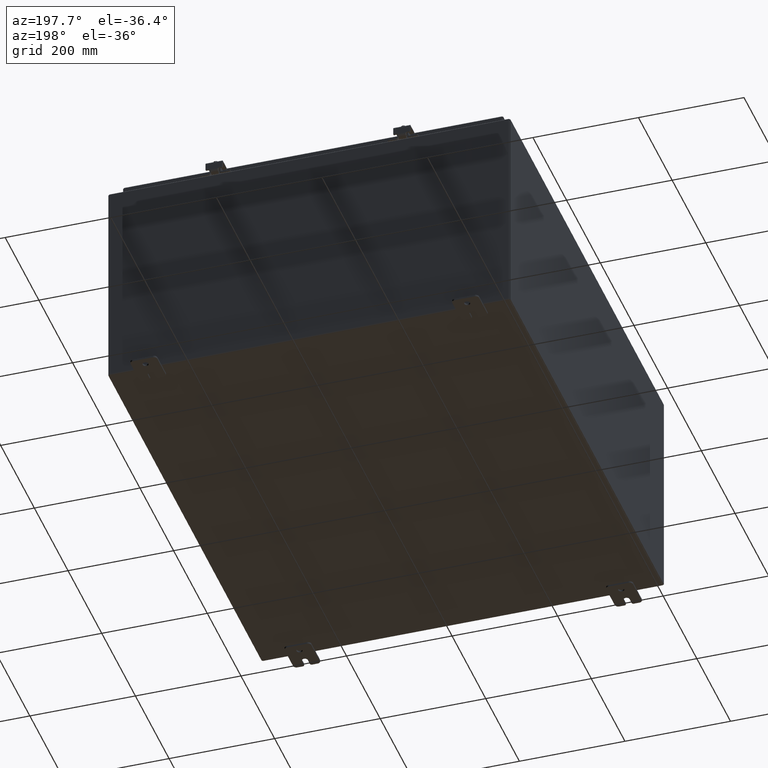
[diagram: clean part render]
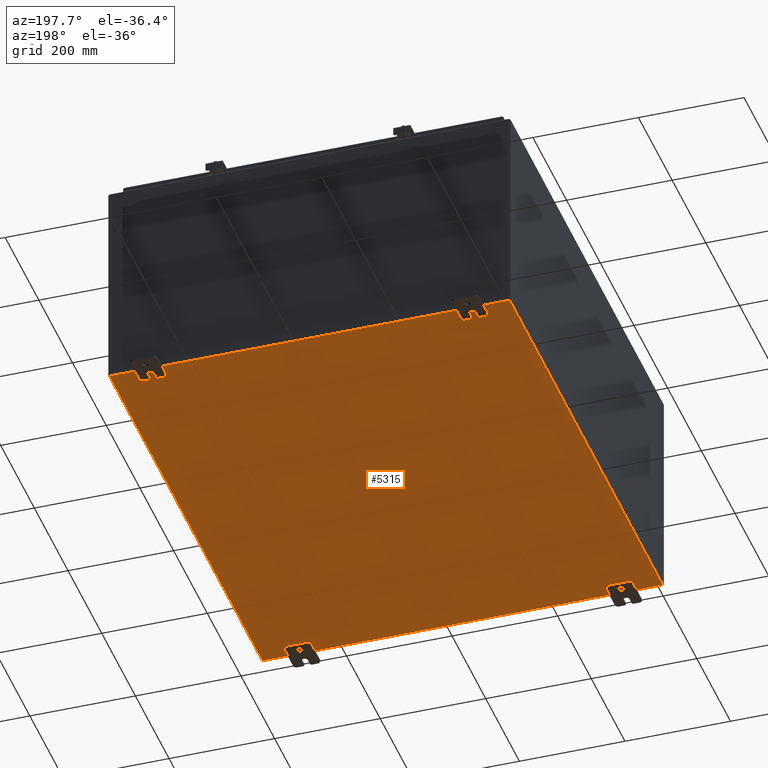
[diagram: same view with one face highlighted and labeled with its STEP entity id]
A machine part, auxiliary view. The second image highlights one B-rep face of the part: STEP entity #5315.
In plain terms, the highlighted planar face has unit normal (0, 0, 1).
Its self-contained STEP definition (entity closure, byte-faithful):
#5054=CARTESIAN_POINT('',(29.851999999999993,35.894750000000002,-4.370957E-017));
#5055=VERTEX_POINT('',#5054);
#5063=CARTESIAN_POINT('',(-1.118965E-014,35.894750000000002,-4.370957E-017));
#5064=VERTEX_POINT('',#5063);
#5065=CARTESIAN_POINT('',(-1.154632E-014,35.894750000000002,-2.185478E-017));
#5066=DIRECTION('',(1.0,0.0,0.0));
#5067=VECTOR('',#5066,29.852000000000007);
#5068=LINE('',#5065,#5067);
#5069=EDGE_CURVE('',#5064,#5055,#5068,.T.);
#5171=CARTESIAN_POINT('',(0.0,0.105250000000001,-4.370957E-017));
#5172=VERTEX_POINT('',#5171);
#5180=CARTESIAN_POINT('',(29.852,0.105250000000001,-4.370957E-017));
#5181=VERTEX_POINT('',#5180);
#5182=CARTESIAN_POINT('',(29.852,0.105250000000001,-2.185478E-017));
#5183=DIRECTION('',(-1.0,0.0,0.0));
#5184=VECTOR('',#5183,29.852);
#5185=LINE('',#5182,#5184);
#5186=EDGE_CURVE('',#5181,#5172,#5185,.T.);
#5283=CARTESIAN_POINT('',(29.852,0.105250000000001,-2.185478E-017));
#5284=DIRECTION('',(0.0,1.0,0.0));
#5285=VECTOR('',#5284,35.789500000000004);
#5286=LINE('',#5283,#5285);
#5287=EDGE_CURVE('',#5181,#5055,#5286,.T.);
#5299=CARTESIAN_POINT('',(14.925999999999997,18.000000000000007,-2.185478E-017));
#5300=DIRECTION('',(0.0,0.0,1.0));
#5301=DIRECTION('',(1.0,0.0,0.0));
#5302=AXIS2_PLACEMENT_3D('',#5299,#5300,#5301);
#5303=PLANE('',#5302);
#5304=ORIENTED_EDGE('',*,*,#5186,.T.);
#5305=CARTESIAN_POINT('',(-1.115743E-014,35.894750000000002,-2.185478E-017));
#5306=DIRECTION('',(0.0,-1.0,0.0));
#5307=VECTOR('',#5306,35.789500000000004);
#5308=LINE('',#5305,#5307);
#5309=EDGE_CURVE('',#5064,#5172,#5308,.T.);
#5310=ORIENTED_EDGE('',*,*,#5309,.F.);
#5311=ORIENTED_EDGE('',*,*,#5069,.T.);
#5312=ORIENTED_EDGE('',*,*,#5287,.F.);
#5313=EDGE_LOOP('',(#5304,#5310,#5311,#5312));
#5314=FACE_OUTER_BOUND('',#5313,.T.);
#5315=ADVANCED_FACE('',(#5314),#5303,.F.);